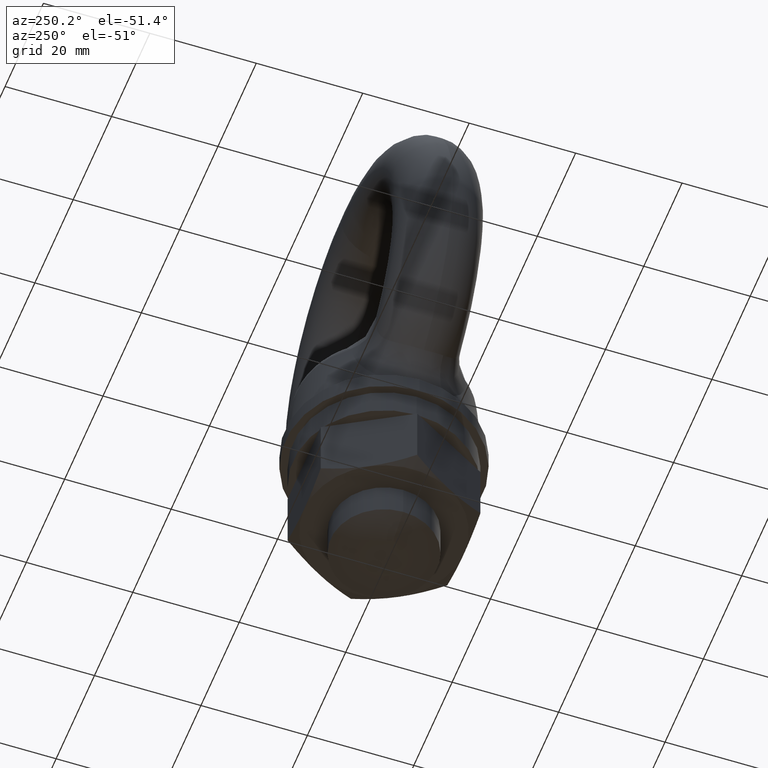
[diagram: clean part render]
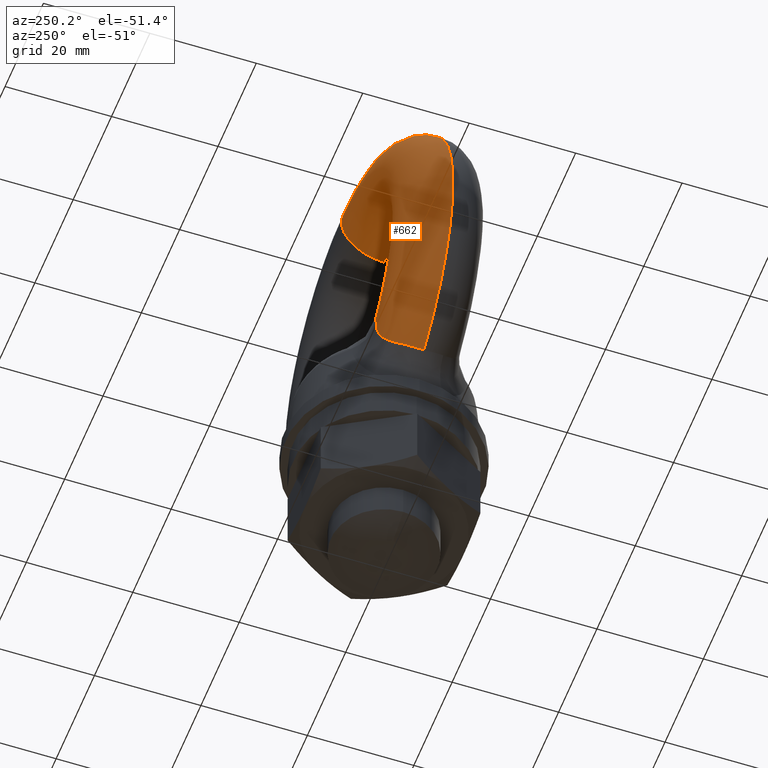
[diagram: same view with one face highlighted and labeled with its STEP entity id]
A machine part, auxiliary view. The second image highlights one B-rep face of the part: STEP entity #662.
In plain terms, the highlighted toroidal blend (fillet) surface has major radius 28 mm and minor (blend) radius 8 mm.
Its self-contained STEP definition (entity closure, byte-faithful):
#367 = VERTEX_POINT ( 'NONE', #2117 ) ;
#369 = EDGE_CURVE ( 'NONE', #599, #367, #2116, .T. ) ;
#517 = VERTEX_POINT ( 'NONE', #2854 ) ;
#519 = EDGE_CURVE ( 'NONE', #367, #517, #2853, .T. ) ;
#537 = EDGE_CURVE ( 'NONE', #599, #815, #2943, .T. ) ;
#540 = EDGE_CURVE ( 'NONE', #815, #541, #2922, .T. ) ;
#541 = VERTEX_POINT ( 'NONE', #2917 ) ;
#599 = VERTEX_POINT ( 'NONE', #3112 ) ;
#662 = ADVANCED_FACE ( 'NONE', ( #2904 ), #2906, .T. ) ;
#663 = EDGE_LOOP ( 'NONE', ( #796, #797, #798, #799, #800, #786, #789, #792 ) ) ;
#694 = VERTEX_POINT ( 'NONE', #3404 ) ;
#786 = ORIENTED_EDGE ( 'NONE', *, *, #787, .T. ) ;
#787 = EDGE_CURVE ( 'NONE', #694, #788, #2545, .T. ) ;
#788 = VERTEX_POINT ( 'NONE', #985 ) ;
#789 = ORIENTED_EDGE ( 'NONE', *, *, #790, .T. ) ;
#790 = EDGE_CURVE ( 'NONE', #788, #791, #977, .T. ) ;
#791 = VERTEX_POINT ( 'NONE', #978 ) ;
#792 = ORIENTED_EDGE ( 'NONE', *, *, #793, .T. ) ;
#793 = EDGE_CURVE ( 'NONE', #791, #541, #954, .T. ) ;
#796 = ORIENTED_EDGE ( 'NONE', *, *, #540, .F. ) ;
#797 = ORIENTED_EDGE ( 'NONE', *, *, #537, .F. ) ;
#798 = ORIENTED_EDGE ( 'NONE', *, *, #369, .T. ) ;
#799 = ORIENTED_EDGE ( 'NONE', *, *, #519, .T. ) ;
#800 = ORIENTED_EDGE ( 'NONE', *, *, #801, .T. ) ;
#801 = EDGE_CURVE ( 'NONE', #517, #694, #928, .T. ) ;
#815 = VERTEX_POINT ( 'NONE', #2579 ) ;
#884 = CARTESIAN_POINT ( 'NONE',  ( -18.07977859955469700, 8.003458689657119200, -21.17042362808051300 ) ) ;
#885 = CARTESIAN_POINT ( 'NONE',  ( -18.02768932964250200, 7.993091859073883800, -20.81565670452090100 ) ) ;
#886 = CARTESIAN_POINT ( 'NONE',  ( -17.84811499194987400, 7.929733466183032300, -20.11838136295903100 ) ) ;
#887 = CARTESIAN_POINT ( 'NONE',  ( -17.72153517151666000, 7.876760325673066300, -19.78228716625924800 ) ) ;
#888 = CARTESIAN_POINT ( 'NONE',  ( -17.47397872792899100, 7.761468932633107400, -19.32454664443911000 ) ) ;
#889 = CARTESIAN_POINT ( 'NONE',  ( -17.38154244137071900, 7.716979344583882600, -19.17882500283559800 ) ) ;
#890 = CARTESIAN_POINT ( 'NONE',  ( -17.17341124250270600, 7.614311512438230300, -18.90333602284566400 ) ) ;
#891 = CARTESIAN_POINT ( 'NONE',  ( -17.05793256764716800, 7.556212195201202200, -18.77448645054602100 ) ) ;
#892 = CARTESIAN_POINT ( 'NONE',  ( -16.81044838943327200, 7.430531357126382000, -18.54514945629766100 ) ) ;
#893 = CARTESIAN_POINT ( 'NONE',  ( -16.67602498177861400, 7.361733699688934400, -18.44248405048900400 ) ) ;
#894 = CARTESIAN_POINT ( 'NONE',  ( -16.39476057496583600, 7.218288425426486300, -18.26868347398501400 ) ) ;
#895 = CARTESIAN_POINT ( 'NONE',  ( -16.24862167784843700, 7.144014841442259300, -18.19751398808079300 ) ) ;
#896 = CARTESIAN_POINT ( 'NONE',  ( -15.94572938865951400, 6.992236243241000800, -18.08353575870141600 ) ) ;
#903 = CARTESIAN_POINT ( 'NONE',  ( -13.16581114616844100, 5.822891640927260000, -18.26337593279295000 ) ) ;
#904 = CARTESIAN_POINT ( 'NONE',  ( -12.09536415915232700, 5.465574940451479500, -18.56749605341953900 ) ) ;
#905 = CARTESIAN_POINT ( 'NONE',  ( -11.02600949132122200, 5.094174966518608900, -18.85273109701070400 ) ) ;
#906 = CARTESIAN_POINT ( 'NONE',  ( -8.876205591786297000, 4.343719679773363000, -19.35445521958899600 ) ) ;
#907 = CARTESIAN_POINT ( 'NONE',  ( -7.795869597807897100, 3.964306393876512800, -19.57089191997829800 ) ) ;
#908 = CARTESIAN_POINT ( 'NONE',  ( -6.160986674743913500, 3.396270694925603200, -19.82547916088814000 ) ) ;
#909 = CARTESIAN_POINT ( 'NONE',  ( -5.613669142730709700, 3.207018685815065800, -19.89871213727469300 ) ) ;
#910 = CARTESIAN_POINT ( 'NONE',  ( -4.513226142144904300, 2.830539485977728600, -20.01962005447588700 ) ) ;
#911 = CARTESIAN_POINT ( 'NONE',  ( -3.959779719305937600, 2.642897372626523500, -20.06725052408935600 ) ) ;
#912 = CARTESIAN_POINT ( 'NONE',  ( -2.849695746449021300, 2.277629489976726400, -20.13554003528869500 ) ) ;
#913 = CARTESIAN_POINT ( 'NONE',  ( -2.293241105869360900, 2.097519597694801300, -20.15596734802055000 ) ) ;
#914 = CARTESIAN_POINT ( 'NONE',  ( -1.446693863544346300, 1.863026362127258700, -20.16967938433177200 ) ) ;
#915 = CARTESIAN_POINT ( 'NONE',  ( -1.161967417853969600, 1.791021747685690900, -20.17147424733032300 ) ) ;
#916 = CARTESIAN_POINT ( 'NONE',  ( -0.5862053274139787900, 1.683173924994517700, -20.17241038105855500 ) ) ;
#917 = CARTESIAN_POINT ( 'NONE',  ( -0.2934825933647535200, 1.648912988659271900, -20.17177632180641900 ) ) ;
#918 = CARTESIAN_POINT ( 'NONE',  ( -15.78801399126979300, 6.914270677098374800, -18.04059165343120700 ) ) ;
#919 = CARTESIAN_POINT ( 'NONE',  ( -15.46676393961533500, 6.759106830295492000, -17.98127042126007800 ) ) ;
#920 = CARTESIAN_POINT ( 'NONE',  ( -15.30441603709839200, 6.682468531190193200, -17.96487839060626300 ) ) ;
#921 = CARTESIAN_POINT ( 'NONE',  ( -14.81221330635344000, 6.456961513143179200, -17.94775066259624600 ) ) ;
#922 = CARTESIAN_POINT ( 'NONE',  ( -14.48123799294936600, 6.314584864780778500, -17.97898440379200500 ) ) ;
#923 = CARTESIAN_POINT ( 'NONE',  ( 6.823965996878886200E-013, 1.648912988659338300, -20.17177632180642600 ) ) ;
#928 = B_SPLINE_CURVE_WITH_KNOTS ( 'NONE', 3,
 ( #923, #917, #916, #915, #914, #913, #912, #911, #910, #909, #908, #907, #906, #905, #904, #903 ),
 .UNSPECIFIED., .F., .F.,
 ( 4, 2, 2, 2, 2, 2, 2, 4 ),
 ( 0.01400035937500931200, 0.01487766894906750500, 0.01575497852312569800, 0.01750959767124208400, 0.01926421681935847400, 0.02101883596747486400, 0.02452807426370763600, 0.02803731255994041200 ),
 .UNSPECIFIED. ) ;
#933 = CARTESIAN_POINT ( 'NONE',  ( -20.82274396233959700, -4.779909794809850600E-016, -29.36687477207695500 ) ) ;
#934 = CARTESIAN_POINT ( 'NONE',  ( -20.82274396233959000, 0.3333399613064570400, -29.36687477207694700 ) ) ;
#935 = CARTESIAN_POINT ( 'NONE',  ( -20.81241133440934700, 0.6667534197649367400, -29.34876368838753500 ) ) ;
#936 = CARTESIAN_POINT ( 'NONE',  ( -20.76881765416468900, 1.333730597102415600, -29.27663618137727800 ) ) ;
#937 = CARTESIAN_POINT ( 'NONE',  ( -20.73534077858353100, 1.666745450908852600, -29.22238999710290800 ) ) ;
#938 = CARTESIAN_POINT ( 'NONE',  ( -20.59604896188286500, 2.638086811658062500, -29.01525777578670800 ) ) ;
#939 = CARTESIAN_POINT ( 'NONE',  ( -20.45220719360046900, 3.258800377939266900, -28.81727177811009700 ) ) ;
#940 = CARTESIAN_POINT ( 'NONE',  ( -20.22635143677745300, 3.850677136497409900, -28.57893508878730100 ) ) ;
#942 = CARTESIAN_POINT ( 'NONE',  ( -20.22635143677745300, 3.850677136497409900, -28.57893508878730100 ) ) ;
#943 = CARTESIAN_POINT ( 'NONE',  ( -20.11418828243314400, 4.144611482722651500, -28.46057372733064700 ) ) ;
#944 = CARTESIAN_POINT ( 'NONE',  ( -19.99054849801883500, 4.431489786215258200, -28.32525873356544800 ) ) ;
#945 = CARTESIAN_POINT ( 'NONE',  ( -19.73060673504890200, 4.977945136852560500, -28.02236145529681700 ) ) ;
#946 = CARTESIAN_POINT ( 'NONE',  ( -19.59491152535036600, 5.236678138859782700, -27.85558941732404400 ) ) ;
#947 = CARTESIAN_POINT ( 'NONE',  ( -19.31911577724116900, 5.725815264394606500, -27.48705929234962000 ) ) ;
#948 = CARTESIAN_POINT ( 'NONE',  ( -19.17896405596061600, 5.956222591947846600, -27.28534354682487600 ) ) ;
#949 = CARTESIAN_POINT ( 'NONE',  ( -18.90315984833435100, 6.387940149439695700, -26.83927494819517900 ) ) ;
#950 = CARTESIAN_POINT ( 'NONE',  ( -18.76845463239104500, 6.587663616799281900, -26.59566776194106900 ) ) ;
#951 = CARTESIAN_POINT ( 'NONE',  ( -18.52507872937813700, 6.943143772068261800, -26.07781253912320100 ) ) ;
#954 = B_SPLINE_CURVE_WITH_KNOTS ( 'NONE', 3,
 ( #940, #939, #938, #937, #936, #935, #934, #933 ),
 .UNSPECIFIED., .F., .F.,
 ( 4, 2, 2, 4 ),
 ( 0.0000000000000000000, 0.002030565302483935300, 0.003045847953725902000, 0.004061130604967868800 ),
 .UNSPECIFIED. ) ;
#977 = B_SPLINE_CURVE_WITH_KNOTS ( 'NONE', 3,
 ( #984, #983, #982, #981, #980, #979, #951, #950, #949, #948, #947, #946, #945, #944, #943, #942 ),
 .UNSPECIFIED., .F., .F.,
 ( 4, 2, 2, 2, 2, 2, 2, 4 ),
 ( 0.0000000000000000000, 0.002017604920524060300, 0.003026407380786094600, 0.004035209841048129200, 0.005044012301310163100, 0.006052814761572197800, 0.007061617221834232500, 0.008070419682096267200 ),
 .UNSPECIFIED. ) ;
#978 = CARTESIAN_POINT ( 'NONE',  ( -20.22635143677745300, 3.850677136497409900, -28.57893508878730100 ) ) ;
#979 = CARTESIAN_POINT ( 'NONE',  ( -18.41549302629719200, 7.100415413047146600, -25.80224963356008400 ) ) ;
#980 = CARTESIAN_POINT ( 'NONE',  ( -18.23171049364464100, 7.375652238867368200, -25.21441134305342800 ) ) ;
#981 = CARTESIAN_POINT ( 'NONE',  ( -18.15776407699708300, 7.493607341628516500, -24.90071778634212400 ) ) ;
#982 = CARTESIAN_POINT ( 'NONE',  ( -18.00768359795330700, 7.783120605078409000, -23.93155989795794600 ) ) ;
#983 = CARTESIAN_POINT ( 'NONE',  ( -18.00517298128528400, 7.888770549149453100, -23.26569416772947800 ) ) ;
#984 = CARTESIAN_POINT ( 'NONE',  ( -18.07603648372269600, 7.945372300636390300, -22.59188056541015000 ) ) ;
#985 = CARTESIAN_POINT ( 'NONE',  ( -18.07603648372269600, 7.945372300636390300, -22.59188056541015000 ) ) ;
#986 = CARTESIAN_POINT ( 'NONE',  ( -18.07603648372269600, 7.945372300636390300, -22.59188056541015000 ) ) ;
#987 = CARTESIAN_POINT ( 'NONE',  ( -18.11359865916541500, 7.975374838566208000, -22.23471638532508300 ) ) ;
#988 = CARTESIAN_POINT ( 'NONE',  ( -18.12266108248949700, 7.994615146475909200, -21.87896926831058400 ) ) ;
#2112 = DIRECTION ( 'NONE',  ( 0.0000000000000000000, 0.0000000000000000000, -1.000000000000000000 ) ) ;
#2113 = DIRECTION ( 'NONE',  ( 0.0000000000000000000, -1.000000000000000000, 0.0000000000000000000 ) ) ;
#2114 = CARTESIAN_POINT ( 'NONE',  ( 0.0000000000000000000, 9.796850830579018100E-016, 0.0000000000000000000 ) ) ;
#2115 = AXIS2_PLACEMENT_3D ( 'NONE', #2114, #2113, #2112 ) ;
#2116 = CIRCLE ( 'NONE', #2115, 20.00000000000000000 ) ;
#2117 = CARTESIAN_POINT ( 'NONE',  ( 0.0000000000000000000, 9.796850830579018100E-016, -20.00000000000000000 ) ) ;
#2148 = DIRECTION ( 'NONE',  ( 0.0000000000000000000, 0.0000000000000000000, -1.000000000000000000 ) ) ;
#2542 = CARTESIAN_POINT ( 'NONE',  ( -13.82426550664459900, 6.053219655340297900, -18.08975020714982700 ) ) ;
#2543 = CARTESIAN_POINT ( 'NONE',  ( -13.49582032084218500, 5.933049164701371200, -18.16961843594631900 ) ) ;
#2545 = B_SPLINE_CURVE_WITH_KNOTS ( 'NONE', 3,
 ( #2547, #2543, #2542, #922, #921, #920, #919, #918, #896, #895, #894, #893, #892, #891, #890, #889, #888, #887, #886, #885, #884, #988, #987, #986 ),
 .UNSPECIFIED., .F., .F.,
 ( 4, 2, 2, 2, 2, 2, 2, 2, 2, 2, 2, 4 ),
 ( 0.0000000000000000000, 0.001073500678988864700, 0.002147001357977729400, 0.002683751697472163600, 0.003220502036966597800, 0.003757252376461032000, 0.004294002715955465800, 0.004830753055449900000, 0.005367503394944334200, 0.006441004073933198300, 0.007514504752922062300, 0.008588005431910924700 ),
 .UNSPECIFIED. ) ;
#2547 = CARTESIAN_POINT ( 'NONE',  ( -13.16581114616844100, 5.822891640927260000, -18.26337593279295000 ) ) ;
#2579 = CARTESIAN_POINT ( 'NONE',  ( 4.408582873760558900E-015, 0.0000000000000000000, 36.00000000000000700 ) ) ;
#2849 = DIRECTION ( 'NONE',  ( 0.0000000000000000000, 0.0000000000000000000, 1.000000000000000000 ) ) ;
#2850 = DIRECTION ( 'NONE',  ( -1.000000000000000000, 0.0000000000000000000, 0.0000000000000000000 ) ) ;
#2851 = CARTESIAN_POINT ( 'NONE',  ( 0.0000000000000000000, 0.0000000000000000000, -28.00000000000000000 ) ) ;
#2852 = AXIS2_PLACEMENT_3D ( 'NONE', #2851, #2850, #2849 ) ;
#2853 = CIRCLE ( 'NONE', #2852, 8.000000000000000000 ) ;
#2854 = CARTESIAN_POINT ( 'NONE',  ( 6.823965996878886200E-013, 1.648912988659338300, -20.17177632180642600 ) ) ;
#2900 = DIRECTION ( 'NONE',  ( 0.0000000000000000000, -1.000000000000000000, 0.0000000000000000000 ) ) ;
#2901 = CARTESIAN_POINT ( 'NONE',  ( 0.0000000000000000000, 0.0000000000000000000, 0.0000000000000000000 ) ) ;
#2902 = AXIS2_PLACEMENT_3D ( 'NONE', #2901, #2900, #2148 ) ;
#2904 = FACE_OUTER_BOUND ( 'NONE', #663, .T. ) ;
#2906 = TOROIDAL_SURFACE ( 'NONE', #2902, 28.00000000000000000, 8.000000000000000000 ) ;
#2917 = CARTESIAN_POINT ( 'NONE',  ( -20.82274396233959700, -4.779909794809850600E-016, -29.36687477207695500 ) ) ;
#2918 = DIRECTION ( 'NONE',  ( 0.0000000000000000000, 0.0000000000000000000, -1.000000000000000000 ) ) ;
#2919 = DIRECTION ( 'NONE',  ( 0.0000000000000000000, -1.000000000000000000, 0.0000000000000000000 ) ) ;
#2920 = CARTESIAN_POINT ( 'NONE',  ( 0.0000000000000000000, 0.0000000000000000000, 0.0000000000000000000 ) ) ;
#2921 = AXIS2_PLACEMENT_3D ( 'NONE', #2920, #2919, #2918 ) ;
#2922 = CIRCLE ( 'NONE', #2921, 36.00000000000000700 ) ;
#2939 = DIRECTION ( 'NONE',  ( -1.224606353822377000E-016, 0.0000000000000000000, -1.000000000000000000 ) ) ;
#2940 = DIRECTION ( 'NONE',  ( 1.000000000000000000, 0.0000000000000000000, -1.224606353822377300E-016 ) ) ;
#2941 = CARTESIAN_POINT ( 'NONE',  ( 3.428897790702656300E-015, 0.0000000000000000000, 28.00000000000000000 ) ) ;
#2942 = AXIS2_PLACEMENT_3D ( 'NONE', #2941, #2940, #2939 ) ;
#2943 = CIRCLE ( 'NONE', #2942, 8.000000000000000000 ) ;
#3112 = CARTESIAN_POINT ( 'NONE',  ( 2.449212707644754900E-015, 0.0000000000000000000, 20.00000000000000000 ) ) ;
#3404 = CARTESIAN_POINT ( 'NONE',  ( -13.16581114616844100, 5.822891640927260000, -18.26337593279295000 ) ) ;